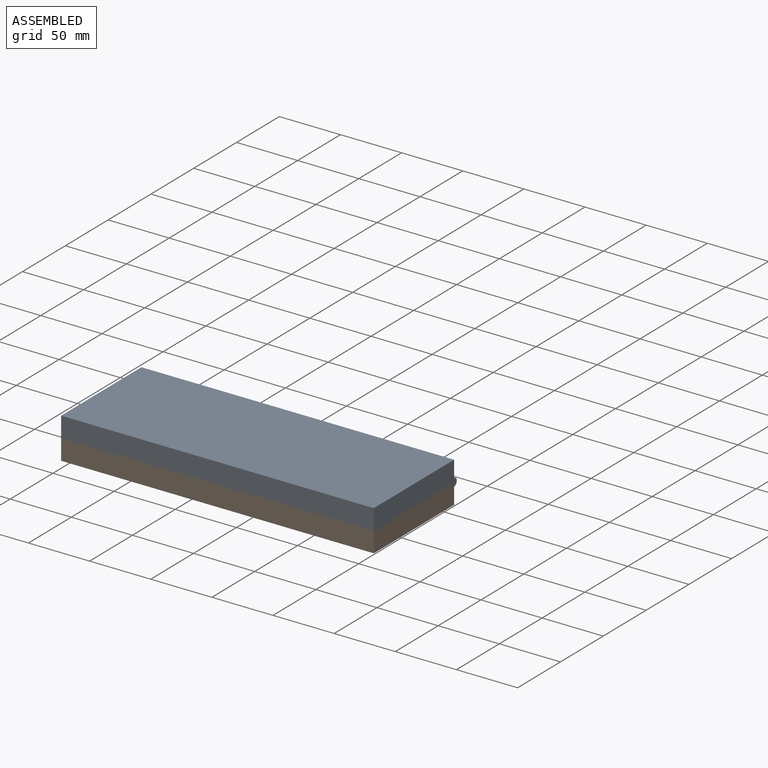
[diagram: assembled view]
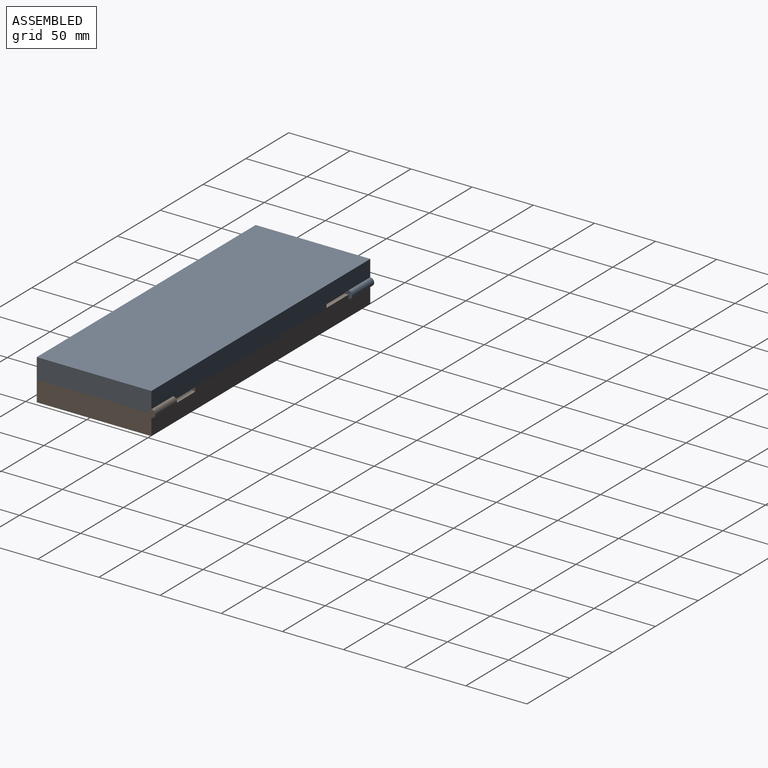
[diagram: assembled view, second angle]
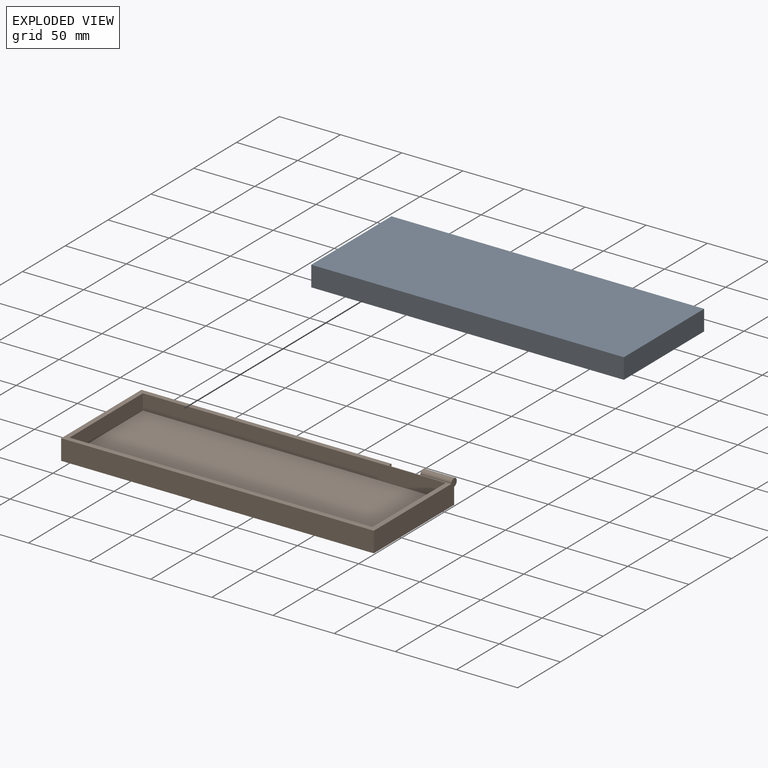
[diagram: exploded view]
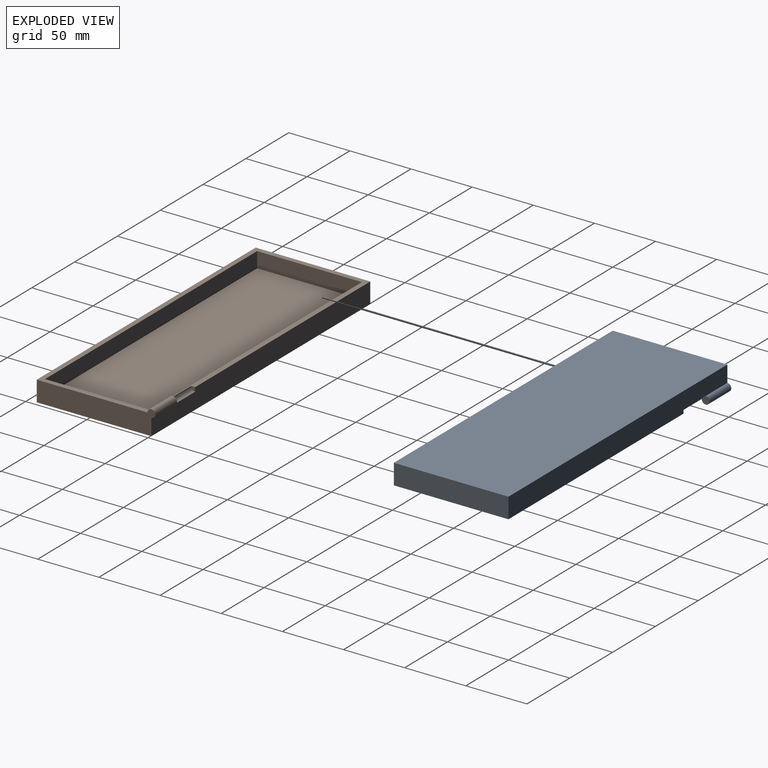
[diagram: exploded view, second angle]
ASSEMBLY  parts=2 mates=3
PART A: 15 faces, bbox 255.7x96.9x19.9 mm
  f0: plane 255.65x16.7mm, normal (0,1,0), area 4102.1mm2, adj f1,f2,f8,f9,f11,f12,f13,f14
  f1: plane 96.9x19.88mm, normal (1,0,0), area 1589mm2, adj f0,f7,f8,f9,f11
  f2: plane 93.73x16.7mm, normal (-1,0,0), area 1565.3mm2, adj f0,f7,f8,f9
  f3: plane 85.73x12.7mm, normal (1,0,0), area 1088.7mm2, adj f4,f6,f8,f10
  f4: plane 247.65x12.7mm, normal (0,-1,0), area 3145.2mm2, adj f3,f5,f8,f10
  f5: plane 85.73x12.7mm, normal (-1,0,0), area 1088.7mm2, adj f4,f6,f8,f10
  f6: plane 247.65x12.7mm, normal (0,1,0), area 3145.2mm2, adj f3,f5,f8,f10
  f7: plane 255.65x16.7mm, normal (0,-1,0), area 4269.5mm2, adj f1,f2,f8,f9
  f8: plane 255.65x93.73mm, normal (0,0,1), area 2563.9mm2, adj f0,f1,f2,f3,f4,f5,f6,f7
  f9: plane 255.65x93.73mm, normal (0,0,-1), area 23961.1mm2, adj f0,f1,f2,f7
  f10: plane 247.65x85.73mm, normal (0,0,1), area 21229.8mm2, adj f3,f4,f5,f6
  f11: cylinder r=3.17mm len=25.4mm, axis (1,0,0), area 380mm2, adj f0,f1,f8,f12
  f12: plane 6.54x6.54mm, normal (-1,0,0), area 32.6mm2, adj f0,f8,f11,f13
  f13: cylinder r=3.37mm len=25.78mm, axis (1,0,0), area 136.3mm2, adj f0,f8,f12,f14
  f14: plane 3.37x3.37mm, normal (1,0,0), area 8.9mm2, adj f0,f8,f13
PART B: same geometry as A
PLACE A rot(axis=(0,1,0),180deg) t=(88.3,48.92,135.02)mm
PLACE B t=(64.12,48.92,101.61)mm
MATE planar A.f0 <-> B.f0  axis (0,1,0) through (80.37,105.68,126.94)mm
MATE planar B.f8 <-> A.f8  axis (0,0,1) through (69.56,55.86,118.31)mm
MATE planar B.f2 <-> A.f1  axis (-1,0,0) through (-51.61,58.81,109.96)mm
